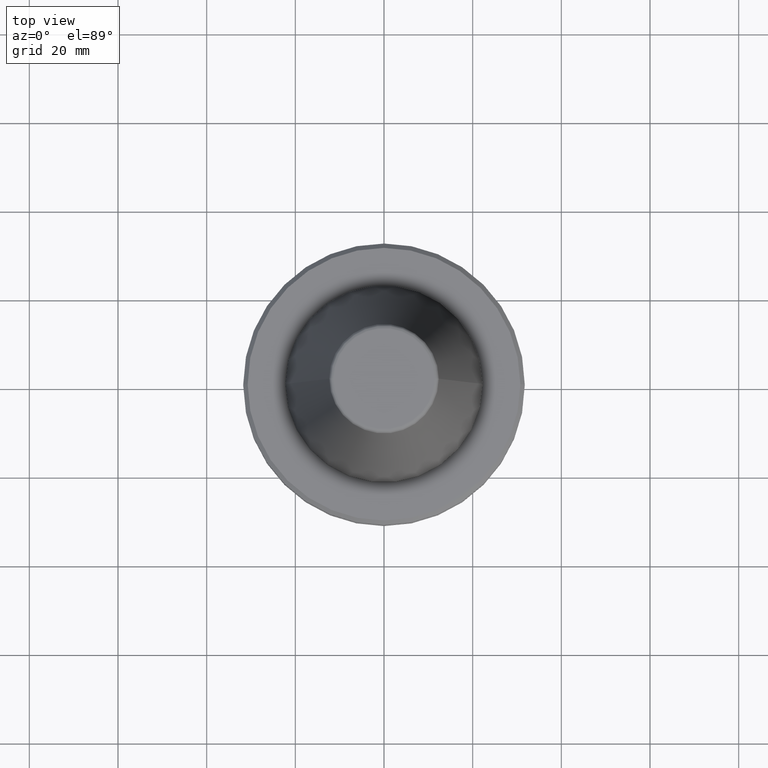
[diagram: clean part render]
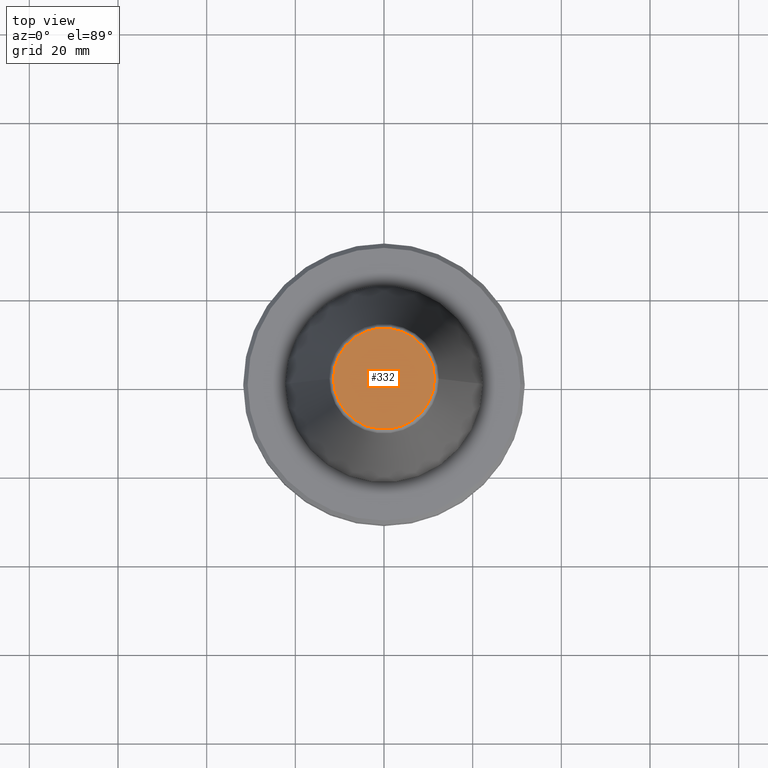
[diagram: same view with one face highlighted and labeled with its STEP entity id]
A machine part, top view. The second image highlights one B-rep face of the part: STEP entity #332.
In plain terms, the highlighted planar face has unit normal (0, 0, 1).
Its self-contained STEP definition (entity closure, byte-faithful):
#47 = CARTESIAN_POINT ( 'NONE',  ( 11.38516261636887500, 1.454871703575701200E-015, 156.9000000000002300 ) ) ;
#95 = VERTEX_POINT ( 'NONE', #1166 ) ;
#210 = VERTEX_POINT ( 'NONE', #47 ) ;
#328 = AXIS2_PLACEMENT_3D ( 'NONE', #485, #1139, #599 ) ;
#332 = ADVANCED_FACE ( 'NONE', ( #1237 ), #833, .T. ) ;
#354 = EDGE_CURVE ( 'NONE', #95, #210, #1300, .T. ) ;
#442 = EDGE_LOOP ( 'NONE', ( #760, #528 ) ) ;
#485 = CARTESIAN_POINT ( 'NONE',  ( 0.0000000000000000000, 0.0000000000000000000, 156.9000000000002300 ) ) ;
#528 = ORIENTED_EDGE ( 'NONE', *, *, #1284, .F. ) ;
#599 = DIRECTION ( 'NONE',  ( -1.000000000000000000, 0.0000000000000000000, 0.0000000000000000000 ) ) ;
#741 = DIRECTION ( 'NONE',  ( 0.0000000000000000000, 0.0000000000000000000, 1.000000000000000000 ) ) ;
#760 = ORIENTED_EDGE ( 'NONE', *, *, #354, .F. ) ;
#833 = PLANE ( 'NONE',  #953 ) ;
#911 = DIRECTION ( 'NONE',  ( 1.000000000000000000, 0.0000000000000000000, -0.0000000000000000000 ) ) ;
#943 = CARTESIAN_POINT ( 'NONE',  ( 0.0000000000000000000, 0.0000000000000000000, 156.9000000000002300 ) ) ;
#953 = AXIS2_PLACEMENT_3D ( 'NONE', #1087, #741, #911 ) ;
#1022 = DIRECTION ( 'NONE',  ( -1.000000000000000000, 0.0000000000000000000, 0.0000000000000000000 ) ) ;
#1087 = CARTESIAN_POINT ( 'NONE',  ( 0.0000000000000000000, 11.38516261636887500, 156.9000000000002300 ) ) ;
#1115 = CIRCLE ( 'NONE', #328, 11.38516261636887500 ) ;
#1139 = DIRECTION ( 'NONE',  ( -0.0000000000000000000, -0.0000000000000000000, -1.000000000000000000 ) ) ;
#1150 = AXIS2_PLACEMENT_3D ( 'NONE', #943, #1202, #1022 ) ;
#1166 = CARTESIAN_POINT ( 'NONE',  ( -11.38516261636887500, 0.0000000000000000000, 156.9000000000002300 ) ) ;
#1202 = DIRECTION ( 'NONE',  ( -0.0000000000000000000, -0.0000000000000000000, -1.000000000000000000 ) ) ;
#1237 = FACE_OUTER_BOUND ( 'NONE', #442, .T. ) ;
#1284 = EDGE_CURVE ( 'NONE', #210, #95, #1115, .T. ) ;
#1300 = CIRCLE ( 'NONE', #1150, 11.38516261636887500 ) ;